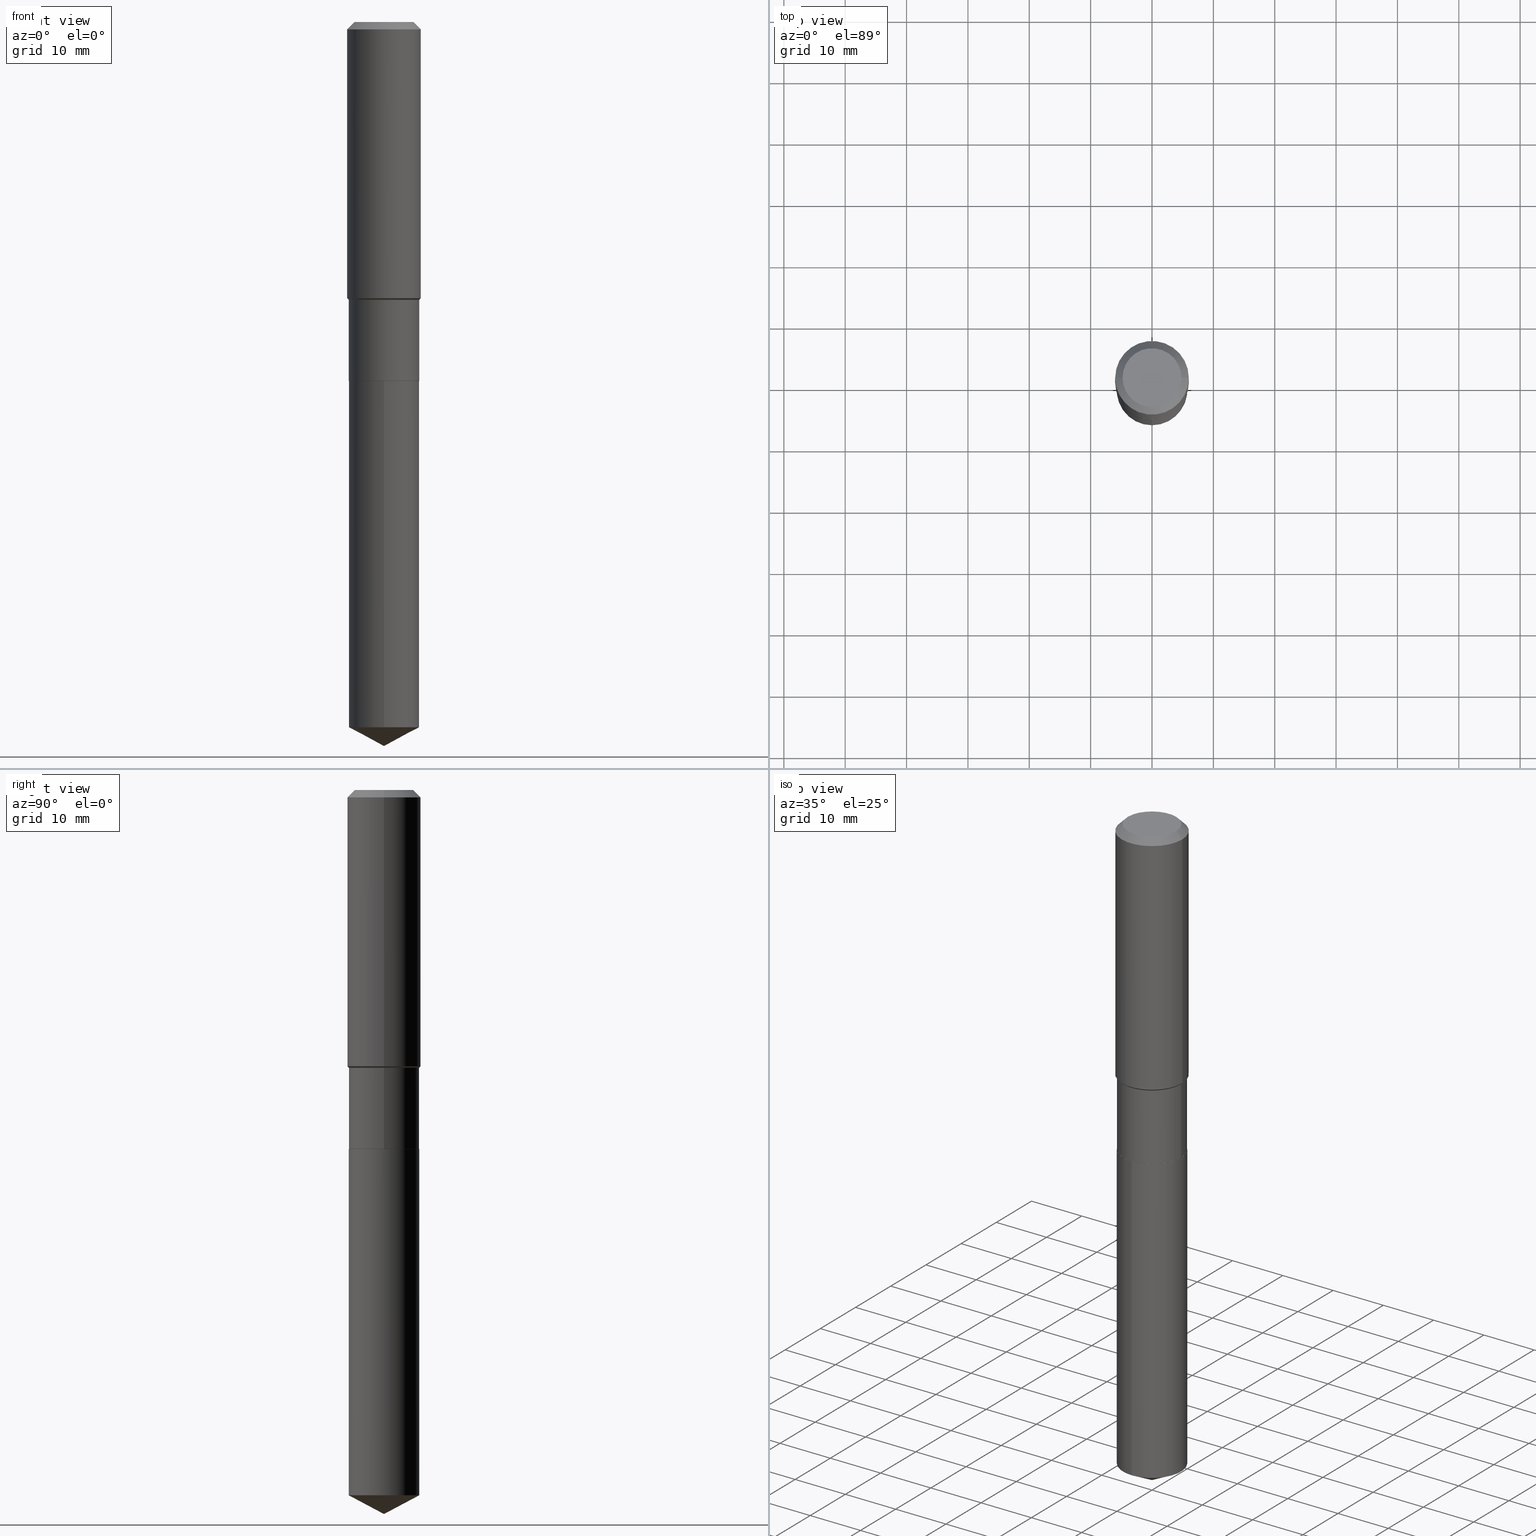
[diagram: canonical four-view strip — front | top / right | iso, engineering-drawing reading convention]
A machine part, canonical four-view strip (front | top / right | iso — engineering-drawing reading convention). The complete STEP part file that produces these views, byte-faithful:
ISO-10303-21;
HEADER;
FILE_DESCRIPTION (( 'STEP AP203' ),
    '1' );
FILE_NAME ('64885.STEP',
    '2024-04-24T19:31:48',
    ( '' ),
    ( '' ),
    'SwSTEP 2.0',
    'SolidWorks 2023',
    '' );
FILE_SCHEMA (( 'CONFIG_CONTROL_DESIGN' ));
ENDSEC;

DATA;
#1 = EDGE_CURVE ( 'NONE', #479, #288, #381, .T. ) ;
#2 = CARTESIAN_POINT ( 'NONE',  ( -0.2362000000000002153, -4.511047027501882961E-15, -1.772699999999999054 ) ) ;
#3 = CARTESIAN_POINT ( 'NONE',  ( 1.155239464041865506E-30, -1.649375784469511859E-16, -0.04724000000000028177 ) ) ;
#4 = AXIS2_PLACEMENT_3D ( 'NONE', #289, #225, #359 ) ;
#5 = LOCAL_TIME ( 15, 31, 48.00000000000000000, #114 ) ;
#6 = DIRECTION ( 'NONE',  ( 1.000000000000000000, -6.982962677686266711E-15, 4.876176775795935793E-29 ) ) ;
#7 = ADVANCED_FACE ( 'NONE', ( #188 ), #386, .T. ) ;
#8 = SHAPE_DEFINITION_REPRESENTATION ( #399, #183 ) ;
#9 = APPROVAL ( #456, 'UNSPECIFIED' ) ;
#10 = PERSON_AND_ORGANIZATION ( #226, #28 ) ;
#11 = LENGTH_MEASURE_WITH_UNIT ( LENGTH_MEASURE( 0.02539999999999999897 ), #302 );
#12 = CIRCLE ( 'NONE', #319, 0.2362000000000002153 ) ;
#13 = ADVANCED_FACE ( 'NONE', ( #89 ), #370, .T. ) ;
#14 = EDGE_CURVE ( 'NONE', #32, #451, #138, .T. ) ;
#15 = VERTEX_POINT ( 'NONE', #278 ) ;
#16 = CARTESIAN_POINT ( 'NONE',  ( 0.2263999999999999624, -9.620776829182280876E-15, -2.302699999999999303 ) ) ;
#17 = VECTOR ( 'NONE', #126, 39.37007874015748143 ) ;
#18 = AXIS2_PLACEMENT_3D ( 'NONE', #458, #154, #343 ) ;
#19 = EDGE_CURVE ( 'NONE', #143, #288, #149, .T. ) ;
#20 = CARTESIAN_POINT ( 'NONE',  ( 0.000000000000000000, 0.000000000000000000, 0.000000000000000000 ) ) ;
#21 = ORIENTED_EDGE ( 'NONE', *, *, #19, .T. ) ;
#22 = DIRECTION ( 'NONE',  ( 0.7071067811865486830, -2.468850131082269682E-15, 0.7071067811865462405 ) ) ;
#23 = ORIENTED_EDGE ( 'NONE', *, *, #26, .F. ) ;
#24 = CARTESIAN_POINT ( 'NONE',  ( 4.359048147025004325E-29, -6.223565486487904770E-15, -1.782499999999999307 ) ) ;
#25 = AXIS2_PLACEMENT_3D ( 'NONE', #405, #218, #117 ) ;
#26 = EDGE_CURVE ( 'NONE', #41, #143, #462, .T. ) ;
#27 = ORIENTED_EDGE ( 'NONE', *, *, #223, .T. ) ;
#28 = ORGANIZATION ( 'UNSPECIFIED', 'UNSPECIFIED', '' ) ;
#29 = CARTESIAN_POINT ( 'NONE',  ( 0.2361999999999999933, -1.814313362916447440E-15, -0.04724000000000028177 ) ) ;
#30 = ORIENTED_EDGE ( 'NONE', *, *, #189, .T. ) ;
#31 = EDGE_CURVE ( 'NONE', #469, #211, #277, .T. ) ;
#32 = VERTEX_POINT ( 'NONE', #81 ) ;
#33 = DIRECTION ( 'NONE',  ( 1.000000000000000000, -6.982962677686266711E-15, 0.000000000000000000 ) ) ;
#34 = ORIENTED_EDGE ( 'NONE', *, *, #131, .T. ) ;
#35 = AXIS2_PLACEMENT_3D ( 'NONE', #107, #250, #137 ) ;
#36 = DIRECTION ( 'NONE',  ( -2.445468806185136597E-29, 3.491481338843145583E-15, 1.000000000000000000 ) ) ;
#37 = CONICAL_SURFACE ( 'NONE', #202, 0.2361999999999999933, 0.7853981633974452814 ) ;
#38 = DIRECTION ( 'NONE',  ( -0.7071067811866199593, 7.493145998870616062E-15, 0.7071067811864750752 ) ) ;
#39 = DIRECTION ( 'NONE',  ( -2.445464056644001836E-29, 3.491488140456377926E-15, 1.000000000000000000 ) ) ;
#40 = DATE_TIME_ROLE ( 'creation_date' ) ;
#41 = VERTEX_POINT ( 'NONE', #464 ) ;
#42 = LINE ( 'NONE', #378, #429 ) ;
#43 = PERSON_AND_ORGANIZATION ( #226, #28 ) ;
#44 = DIRECTION ( 'NONE',  ( -2.445464056644001836E-29, 3.491488140456377531E-15, 1.000000000000000000 ) ) ;
#45 = CALENDAR_DATE ( 2024, 24, 4 ) ;
#46 = CALENDAR_DATE ( 2024, 24, 4 ) ;
#47 =( CONVERSION_BASED_UNIT ( 'INCH', #11 ) LENGTH_UNIT ( ) NAMED_UNIT ( #56 ) );
#48 = EDGE_CURVE ( 'NONE', #451, #32, #239, .T. ) ;
#49 = CIRCLE ( 'NONE', #388, 0.2258999999999999619 ) ;
#50 = DIRECTION ( 'NONE',  ( 1.000000000000000000, -6.982962677686269077E-15, 0.000000000000000000 ) ) ;
#51 = CARTESIAN_POINT ( 'NONE',  ( -0.2362000000000001043, 1.678301941865357380E-15, -1.161852468318209317E-29 ) ) ;
#52 = FACE_OUTER_BOUND ( 'NONE', #426, .T. ) ;
#53 = VECTOR ( 'NONE', #38, 39.37007874015748143 ) ;
#54 = APPROVAL_PERSON_ORGANIZATION ( #10, #9, #238 ) ;
#55 = ORIENTED_EDGE ( 'NONE', *, *, #192, .F. ) ;
#56 = DIMENSIONAL_EXPONENTS ( 1.000000000000000000, 0.000000000000000000, 0.000000000000000000, 0.000000000000000000, 0.000000000000000000, 0.000000000000000000, 0.000000000000000000 ) ;
#57 = CARTESIAN_POINT ( 'NONE',  ( -0.2361999999999999933, -1.498841332041738346E-15, -0.04724000000000028177 ) ) ;
#58 = CARTESIAN_POINT ( 'NONE',  ( 0.000000000000000000, 0.000000000000000000, 0.000000000000000000 ) ) ;
#59 = ORIENTED_EDGE ( 'NONE', *, *, #135, .T. ) ;
#60 = DIRECTION ( 'NONE',  ( -6.982962677686265922E-15, -1.000000000000000000, 3.619939920933211627E-15 ) ) ;
#61 = DIRECTION ( 'NONE',  ( -0.7071067811865453523, 2.468850131082234184E-15, -0.7071067811865496822 ) ) ;
#62 = ORIENTED_EDGE ( 'NONE', *, *, #336, .T. ) ;
#63 = DIRECTION ( 'NONE',  ( -2.445468806185136597E-29, 3.491481338843145583E-15, 1.000000000000000000 ) ) ;
#64 = CARTESIAN_POINT ( 'NONE',  ( -0.2361999999999999933, 1.484438206022545019E-15, -0.04724000000000028177 ) ) ;
#65 = CC_DESIGN_PERSON_AND_ORGANIZATION_ASSIGNMENT ( #391, #387, ( #335 ) ) ;
#66 = AXIS2_PLACEMENT_3D ( 'NONE', #430, #409, #145 ) ;
#67 = ORIENTED_EDGE ( 'NONE', *, *, #251, .F. ) ;
#68 = ADVANCED_FACE ( 'NONE', ( #90 ), #481, .T. ) ;
#69 = DIRECTION ( 'NONE',  ( -0.7071067811865486830, 7.493145998870357316E-15, 0.7071067811865462405 ) ) ;
#70 = EDGE_LOOP ( 'NONE', ( #169, #260, #309, #373 ) ) ;
#71 = APPROVAL ( #348, 'UNSPECIFIED' ) ;
#72 = CLOSED_SHELL ( 'NONE', ( #427, #13, #360, #85, #403 ) ) ;
#73 = DIRECTION ( 'NONE',  ( -2.445468806185136597E-29, 3.491481338843145583E-15, 1.000000000000000000 ) ) ;
#74 = CIRCLE ( 'NONE', #25, 0.2263999999999999624 ) ;
#75 = DIRECTION ( 'NONE',  ( 1.000000000000000000, -6.982962677686266711E-15, 0.000000000000000000 ) ) ;
#76 = DATE_AND_TIME ( #267, #5 ) ;
#77 = CARTESIAN_POINT ( 'NONE',  ( 1.136091443808406747E-28, -1.622037512316700003E-14, -4.645699999999999719 ) ) ;
#78 = PERSON_AND_ORGANIZATION_ROLE ( 'design_supplier' ) ;
#79 = AXIS2_PLACEMENT_3D ( 'NONE', #294, #436, #284 ) ;
#80 = AXIS2_PLACEMENT_3D ( 'NONE', #270, #153, #6 ) ;
#81 = CARTESIAN_POINT ( 'NONE',  ( 1.608668753760976994E-15, 0.2263999999999841972, -4.525320984671841629 ) ) ;
#82 = EDGE_CURVE ( 'NONE', #15, #211, #356, .T. ) ;
#83 = COORDINATED_UNIVERSAL_TIME_OFFSET ( 5, 0, .BEHIND. ) ;
#84 = VERTEX_POINT ( 'NONE', #320 ) ;
#85 = ADVANCED_FACE ( 'NONE', ( #368 ), #372, .T. ) ;
#86 = CARTESIAN_POINT ( 'NONE',  ( 0.2362000000000001043, -1.649375784469496920E-15, 1.151752954443000508E-29 ) ) ;
#87 = ORIENTED_EDGE ( 'NONE', *, *, #484, .T. ) ;
#88 = PRODUCT_DEFINITION_FORMATION_WITH_SPECIFIED_SOURCE ( 'ANY', '', #144, .NOT_KNOWN. ) ;
#89 = FACE_OUTER_BOUND ( 'NONE', #140, .T. ) ;
#90 = FACE_OUTER_BOUND ( 'NONE', #321, .T. ) ;
#91 = CC_DESIGN_DATE_AND_TIME_ASSIGNMENT ( #123, #349, ( #335 ) ) ;
#92 = FACE_OUTER_BOUND ( 'NONE', #437, .T. ) ;
#93 = CARTESIAN_POINT ( 'NONE',  ( 4.359048147025004325E-29, -6.223565486487904770E-15, -1.782499999999999307 ) ) ;
#94 = AXIS2_PLACEMENT_3D ( 'NONE', #127, #390, #258 ) ;
#95 = AXIS2_PLACEMENT_3D ( 'NONE', #190, #36, #33 ) ;
#96 = ORIENTED_EDGE ( 'NONE', *, *, #103, .F. ) ;
#97 = APPLICATION_CONTEXT ( 'configuration controlled 3d designs of mechanical parts and assemblies' ) ;
#98 = CARTESIAN_POINT ( 'NONE',  ( 1.155239464041865506E-30, -1.649375784469511859E-16, -0.04724000000000028177 ) ) ;
#99 = EDGE_CURVE ( 'NONE', #485, #162, #124, .T. ) ;
#100 = DIRECTION ( 'NONE',  ( 1.000000000000000000, -6.982962677686265922E-15, 0.000000000000000000 ) ) ;
#101 = ORIENTED_EDGE ( 'NONE', *, *, #131, .F. ) ;
#102 = DIRECTION ( 'NONE',  ( 1.000000000000000000, -6.982962677686266711E-15, 4.876185090822587894E-29 ) ) ;
#103 = EDGE_CURVE ( 'NONE', #143, #162, #442, .T. ) ;
#104 = FACE_OUTER_BOUND ( 'NONE', #361, .T. ) ;
#105 = ORIENTED_EDGE ( 'NONE', *, *, #48, .F. ) ;
#106 = CARTESIAN_POINT ( 'NONE',  ( 4.335082552724389227E-29, -6.189348969367240933E-15, -1.772699999999999054 ) ) ;
#107 = CARTESIAN_POINT ( 'NONE',  ( 5.631181020002513283E-29, -8.039834078954108869E-15, -2.302699999999999303 ) ) ;
#108 = AXIS2_PLACEMENT_3D ( 'NONE', #411, #73, #274 ) ;
#109 = EDGE_LOOP ( 'NONE', ( #408, #181, #264, #111 ) ) ;
#110 = EDGE_CURVE ( 'NONE', #162, #485, #486, .T. ) ;
#111 = ORIENTED_EDGE ( 'NONE', *, *, #204, .F. ) ;
#112 = FACE_OUTER_BOUND ( 'NONE', #324, .T. ) ;
#113 = DIRECTION ( 'NONE',  ( 1.000000000000000000, -6.982962677686266711E-15, 0.000000000000000000 ) ) ;
#114 = COORDINATED_UNIVERSAL_TIME_OFFSET ( 5, 0, .BEHIND. ) ;
#115 = CARTESIAN_POINT ( 'NONE',  ( 1.155239464041865506E-30, -1.649375784469511859E-16, -0.04724000000000028177 ) ) ;
#116 = VECTOR ( 'NONE', #22, 39.37007874015748854 ) ;
#117 = DIRECTION ( 'NONE',  ( -6.982962677686265922E-15, -1.000000000000000000, 3.619939920933211627E-15 ) ) ;
#118 = AXIS2_PLACEMENT_3D ( 'NONE', #228, #187, #231 ) ;
#119 = EDGE_CURVE ( 'NONE', #288, #485, #132, .T. ) ;
#120 = DIRECTION ( 'NONE',  ( 2.445464056644001555E-29, -3.491488140456377531E-15, -1.000000000000000000 ) ) ;
#121 = CALENDAR_DATE ( 2024, 24, 4 ) ;
#122 = FACE_OUTER_BOUND ( 'NONE', #128, .T. ) ;
#123 = DATE_AND_TIME ( #275, #125 ) ;
#124 = CIRCLE ( 'NONE', #79, 0.2263999999999999069 ) ;
#125 = LOCAL_TIME ( 15, 31, 48.00000000000000000, #200 ) ;
#126 = DIRECTION ( 'NONE',  ( 0.7071067811866199593, -2.468850131083015945E-15, 0.7071067811864750752 ) ) ;
#127 = CARTESIAN_POINT ( 'NONE',  ( 1.106652075193497074E-28, -1.580008888426451514E-14, -4.525320984671841629 ) ) ;
#128 = EDGE_LOOP ( 'NONE', ( #457, #179 ) ) ;
#129 = CONICAL_SURFACE ( 'NONE', #4, 0.2263999999999999069, 0.7853981633974500554 ) ;
#130 = VECTOR ( 'NONE', #69, 39.37007874015748854 ) ;
#131 = EDGE_CURVE ( 'NONE', #288, #143, #268, .T. ) ;
#132 = LINE ( 'NONE', #478, #252 ) ;
#133 = CC_DESIGN_DATE_AND_TIME_ASSIGNMENT ( #76, #40, ( #246 ) ) ;
#134 = PERSON_AND_ORGANIZATION ( #226, #28 ) ;
#135 = EDGE_CURVE ( 'NONE', #369, #331, #254, .T. ) ;
#136 = ORIENTED_EDGE ( 'NONE', *, *, #311, .T. ) ;
#137 = DIRECTION ( 'NONE',  ( 1.000000000000000000, -6.982962677686269077E-15, 0.000000000000000000 ) ) ;
#138 = CIRCLE ( 'NONE', #165, 0.2263999999999999624 ) ;
#139 = CONICAL_SURFACE ( 'NONE', #413, 74.04434902938349694, 1.082104136236486269 ) ;
#140 = EDGE_LOOP ( 'NONE', ( #163, #299, #105 ) ) ;
#141 = LINE ( 'NONE', #296, #230 ) ;
#142 = LINE ( 'NONE', #64, #315 ) ;
#143 = VERTEX_POINT ( 'NONE', #16 ) ;
#144 = PRODUCT ( '64885', '64885', '', ( #207 ) ) ;
#145 = DIRECTION ( 'NONE',  ( 1.000000000000000000, -6.982962677686265922E-15, 4.876176775795935793E-29 ) ) ;
#146 = DIRECTION ( 'NONE',  ( -2.445464056644001836E-29, 3.491488140456377926E-15, 1.000000000000000000 ) ) ;
#147 = EDGE_LOOP ( 'NONE', ( #447, #217, #351, #23 ) ) ;
#148 = EDGE_CURVE ( 'NONE', #333, #331, #142, .T. ) ;
#149 = CIRCLE ( 'NONE', #379, 0.2263999999999999624 ) ;
#150 =( GEOMETRIC_REPRESENTATION_CONTEXT ( 3 ) GLOBAL_UNCERTAINTY_ASSIGNED_CONTEXT ( ( #432 ) ) GLOBAL_UNIT_ASSIGNED_CONTEXT ( ( #47, #350, #205 ) ) REPRESENTATION_CONTEXT ( 'NONE', 'WORKASPACE' ) );
#151 = ORIENTED_EDGE ( 'NONE', *, *, #99, .T. ) ;
#152 = DIRECTION ( 'NONE',  ( 2.438088387897960049E-29, -3.491481338843145188E-15, -1.000000000000000000 ) ) ;
#153 = DIRECTION ( 'NONE',  ( -2.445468806185136597E-29, 3.491481338843145583E-15, 1.000000000000000000 ) ) ;
#154 = DIRECTION ( 'NONE',  ( -2.445468806185136597E-29, 3.491481338843145583E-15, 1.000000000000000000 ) ) ;
#155 = DATE_AND_TIME ( #121, #467 ) ;
#156 = FACE_OUTER_BOUND ( 'NONE', #70, .T. ) ;
#157 = CC_DESIGN_PERSON_AND_ORGANIZATION_ASSIGNMENT ( #272, #459, ( #246 ) ) ;
#158 = DIRECTION ( 'NONE',  ( 6.982962677686265922E-15, 1.000000000000000000, -3.491488140456377531E-15 ) ) ;
#159 = COORDINATED_UNIVERSAL_TIME_OFFSET ( 5, 0, .BEHIND. ) ;
#160 = AXIS2_PLACEMENT_3D ( 'NONE', #487, #152, #383 ) ;
#161 = LOCAL_TIME ( 15, 31, 48.00000000000000000, #159 ) ;
#162 = VERTEX_POINT ( 'NONE', #398 ) ;
#163 = ORIENTED_EDGE ( 'NONE', *, *, #395, .F. ) ;
#164 = ORIENTED_EDGE ( 'NONE', *, *, #484, .F. ) ;
#165 = AXIS2_PLACEMENT_3D ( 'NONE', #425, #203, #460 ) ;
#166 = ORIENTED_EDGE ( 'NONE', *, *, #31, .F. ) ;
#167 = CARTESIAN_POINT ( 'NONE',  ( 5.632403754405604963E-29, -8.041579819623531161E-15, -2.303199999999999470 ) ) ;
#168 = DIRECTION ( 'NONE',  ( -2.445468806185136597E-29, 3.491481338843145583E-15, 1.000000000000000000 ) ) ;
#169 = ORIENTED_EDGE ( 'NONE', *, *, #135, .F. ) ;
#170 = CARTESIAN_POINT ( 'NONE',  ( 4.335082552724389227E-29, -6.189348969367240933E-15, -1.772699999999999054 ) ) ;
#171 = ADVANCED_FACE ( 'NONE', ( #52 ), #402, .T. ) ;
#172 = ORIENTED_EDGE ( 'NONE', *, *, #110, .F. ) ;
#173 = LINE ( 'NONE', #212, #130 ) ;
#174 = DIRECTION ( 'NONE',  ( -2.445468806185136877E-29, 3.491481338843145188E-15, 1.000000000000000000 ) ) ;
#175 = AXIS2_PLACEMENT_3D ( 'NONE', #170, #473, #439 ) ;
#176 = CIRCLE ( 'NONE', #286, 0.2361999999999999933 ) ;
#177 = ORIENTED_EDGE ( 'NONE', *, *, #119, .T. ) ;
#178 = FACE_OUTER_BOUND ( 'NONE', #300, .T. ) ;
#179 = ORIENTED_EDGE ( 'NONE', *, *, #449, .T. ) ;
#180 = CARTESIAN_POINT ( 'NONE',  ( 1.136089236795103745E-28, -1.622040645411819183E-14, -4.645699999999999719 ) ) ;
#181 = ORIENTED_EDGE ( 'NONE', *, *, #14, .T. ) ;
#182 = CYLINDRICAL_SURFACE ( 'NONE', #240, 0.2263999999999999624 ) ;
#183 = ADVANCED_BREP_SHAPE_REPRESENTATION ( '64885', ( #338, #341, #407 ), #150 ) ;
#184 = CC_DESIGN_PERSON_AND_ORGANIZATION_ASSIGNMENT ( #134, #281, ( #144 ) ) ;
#185 = ORIENTED_EDGE ( 'NONE', *, *, #189, .F. ) ;
#186 = APPROVAL_PERSON_ORGANIZATION ( #312, #232, #233 ) ;
#187 = DIRECTION ( 'NONE',  ( -2.445468806185136597E-29, 3.491481338843145583E-15, 1.000000000000000000 ) ) ;
#188 = FACE_OUTER_BOUND ( 'NONE', #406, .T. ) ;
#189 = EDGE_CURVE ( 'NONE', #162, #469, #209, .T. ) ;
#190 = CARTESIAN_POINT ( 'NONE',  ( 5.632403754405604963E-29, -8.041579819623531161E-15, -2.303199999999999470 ) ) ;
#191 = ORIENTED_EDGE ( 'NONE', *, *, #223, .F. ) ;
#192 = EDGE_CURVE ( 'NONE', #469, #369, #393, .T. ) ;
#193 = DIRECTION ( 'NONE',  ( -6.982962677686265133E-15, -1.000000000000000000, 3.541896320645562841E-15 ) ) ;
#194 = DATE_AND_TIME ( #45, #161 ) ;
#195 = CIRCLE ( 'NONE', #219, 0.2263999999999999624 ) ;
#196 = APPROVAL_PERSON_ORGANIZATION ( #303, #71, #389 ) ;
#197 = DIRECTION ( 'NONE',  ( -6.165590087286832874E-15, -0.8829475928589261002, 0.4694715627858920826 ) ) ;
#198 = SECURITY_CLASSIFICATION_LEVEL ( 'unclassified' ) ;
#199 = ADVANCED_FACE ( 'NONE', ( #104 ), #129, .T. ) ;
#200 = COORDINATED_UNIVERSAL_TIME_OFFSET ( 5, 0, .BEHIND. ) ;
#201 = VECTOR ( 'NONE', #431, 39.37007874015748143 ) ;
#202 = AXIS2_PLACEMENT_3D ( 'NONE', #285, #435, #441 ) ;
#203 = DIRECTION ( 'NONE',  ( -2.445464056644001836E-29, 3.491488140456377926E-15, 1.000000000000000000 ) ) ;
#204 = EDGE_CURVE ( 'NONE', #366, #84, #195, .T. ) ;
#205 =( NAMED_UNIT ( * ) SI_UNIT ( $, .STERADIAN. ) SOLID_ANGLE_UNIT ( ) );
#206 = DIRECTION ( 'NONE',  ( 0.7071067811865453523, -7.319954787623248157E-15, -0.7071067811865496822 ) ) ;
#207 = MECHANICAL_CONTEXT ( 'NONE', #362, 'mechanical' ) ;
#208 = CONICAL_SURFACE ( 'NONE', #95, 0.2258999999999999619, 0.7853981633975507526 ) ;
#209 = LINE ( 'NONE', #364, #116 ) ;
#210 = APPLICATION_PROTOCOL_DEFINITION ( 'international standard', 'config_control_design', 1994, #97 ) ;
#211 = VERTEX_POINT ( 'NONE', #29 ) ;
#212 = CARTESIAN_POINT ( 'NONE',  ( -0.2263999999999999069, -4.614896732727038413E-15, -1.782499999999999307 ) ) ;
#213 = EDGE_CURVE ( 'NONE', #451, #84, #141, .T. ) ;
#214 = DIRECTION ( 'NONE',  ( 1.000000000000000000, -6.982962677686265922E-15, 4.876176775795935793E-29 ) ) ;
#215 = ORIENTED_EDGE ( 'NONE', *, *, #1, .F. ) ;
#216 = DIRECTION ( 'NONE',  ( -2.445468806185136597E-29, 3.491481338843145583E-15, 1.000000000000000000 ) ) ;
#217 = ORIENTED_EDGE ( 'NONE', *, *, #1, .T. ) ;
#218 = DIRECTION ( 'NONE',  ( -2.445464056644001836E-29, 3.491488140456377926E-15, 1.000000000000000000 ) ) ;
#219 = AXIS2_PLACEMENT_3D ( 'NONE', #167, #472, #60 ) ;
#220 = CARTESIAN_POINT ( 'NONE',  ( 5.632403754405604963E-29, -8.041579819623531161E-15, -2.303199999999999470 ) ) ;
#221 = AXIS2_PLACEMENT_3D ( 'NONE', #347, #120, #158 ) ;
#222 = CC_DESIGN_APPROVAL ( #232, ( #335 ) ) ;
#223 = EDGE_CURVE ( 'NONE', #485, #369, #173, .T. ) ;
#224 = EDGE_LOOP ( 'NONE', ( #215, #392, #397, #101 ) ) ;
#225 = DIRECTION ( 'NONE',  ( -2.445468806185136597E-29, 3.491481338843145583E-15, 1.000000000000000000 ) ) ;
#226 = PERSON ( 'UNSPECIFIED', 'UNSPECIFIED', 'UNSPECIFIED', ('UNSPECIFIED'), ('UNSPECIFIED'), ('UNSPECIFIED') ) ;
#227 = CC_DESIGN_PERSON_AND_ORGANIZATION_ASSIGNMENT ( #43, #78, ( #88 ) ) ;
#228 = CARTESIAN_POINT ( 'NONE',  ( 5.632403754405604963E-29, -8.041579819623531161E-15, -2.303199999999999470 ) ) ;
#229 = ADVANCED_FACE ( 'NONE', ( #445 ), #476, .T. ) ;
#230 = VECTOR ( 'NONE', #438, 39.37007874015748143 ) ;
#231 = DIRECTION ( 'NONE',  ( 1.000000000000000000, -6.982962677686266711E-15, 0.000000000000000000 ) ) ;
#232 = APPROVAL ( #314, 'UNSPECIFIED' ) ;
#233 = APPROVAL_ROLE ( '' ) ;
#234 = DIRECTION ( 'NONE',  ( -1.000000000000000000, 6.982962677686266711E-15, 0.000000000000000000 ) ) ;
#235 = CARTESIAN_POINT ( 'NONE',  ( -1.580942750228060187E-15, -0.2264000000000157831, -4.525320984671840741 ) ) ;
#236 = PERSON_AND_ORGANIZATION ( #226, #28 ) ;
#237 = CARTESIAN_POINT ( 'NONE',  ( 1.608668753760977191E-15, 0.2263999999999919133, -2.303200000000000358 ) ) ;
#238 = APPROVAL_ROLE ( '' ) ;
#239 = CIRCLE ( 'NONE', #94, 0.2263999999999999624 ) ;
#240 = AXIS2_PLACEMENT_3D ( 'NONE', #382, #39, #420 ) ;
#241 = APPROVAL_DATE_TIME ( #352, #9 ) ;
#242 = CARTESIAN_POINT ( 'NONE',  ( -8.491720915920510952E-28, 1.212397722214510145E-13, 34.72437874015748349 ) ) ;
#243 = VECTOR ( 'NONE', #287, 39.37007874015748143 ) ;
#244 = DIRECTION ( 'NONE',  ( 0.000000000000000000, 0.000000000000000000, 1.000000000000000000 ) ) ;
#245 = AXIS2_PLACEMENT_3D ( 'NONE', #3, #490, #113 ) ;
#246 = PRODUCT_DEFINITION ( 'UNKNOWN', '', #88, #424 ) ;
#247 = ORIENTED_EDGE ( 'NONE', *, *, #213, .F. ) ;
#248 = DIRECTION ( 'NONE',  ( -6.982962677686265133E-15, -1.000000000000000000, 3.541896320645562841E-15 ) ) ;
#249 = ORIENTED_EDGE ( 'NONE', *, *, #82, .F. ) ;
#250 = DIRECTION ( 'NONE',  ( -2.445468806185136597E-29, 3.491481338843145583E-15, 1.000000000000000000 ) ) ;
#251 = EDGE_CURVE ( 'NONE', #333, #15, #298, .T. ) ;
#252 = VECTOR ( 'NONE', #174, 39.37007874015748143 ) ;
#253 = DIRECTION ( 'NONE',  ( -2.445468806185136597E-29, 3.491481338843145583E-15, 1.000000000000000000 ) ) ;
#254 = LINE ( 'NONE', #51, #243 ) ;
#255 = EDGE_LOOP ( 'NONE', ( #404, #329, #400 ) ) ;
#256 = CARTESIAN_POINT ( 'NONE',  ( -9.427742298522546243E-47, 1.346031739168365344E-32, 3.855188123715862256E-18 ) ) ;
#257 = ORIENTED_EDGE ( 'NONE', *, *, #396, .F. ) ;
#258 = DIRECTION ( 'NONE',  ( -6.982962677686265922E-15, -1.000000000000000000, 2.413293280622141084E-15 ) ) ;
#259 = VECTOR ( 'NONE', #265, 39.37007874015748854 ) ;
#260 = ORIENTED_EDGE ( 'NONE', *, *, #316, .T. ) ;
#261 = DIRECTION ( 'NONE',  ( -2.445468806185136597E-29, 3.491481338843145583E-15, 1.000000000000000000 ) ) ;
#262 = ADVANCED_FACE ( 'NONE', ( #178 ), #480, .F. ) ;
#263 = CARTESIAN_POINT ( 'NONE',  ( -0.2258999999999999619, -6.433814552367353714E-15, -2.303199999999999470 ) ) ;
#264 = ORIENTED_EDGE ( 'NONE', *, *, #213, .T. ) ;
#265 = DIRECTION ( 'NONE',  ( 6.273719981627763710E-15, 0.8829475928589293199, 0.4694715627858859208 ) ) ;
#266 = PRODUCT_RELATED_PRODUCT_CATEGORY ( 'detail', '', ( #144 ) ) ;
#267 = CALENDAR_DATE ( 2024, 24, 4 ) ;
#268 = CIRCLE ( 'NONE', #35, 0.2263999999999999624 ) ;
#269 = AXIS2_PLACEMENT_3D ( 'NONE', #283, #477, #371 ) ;
#270 = CARTESIAN_POINT ( 'NONE',  ( 0.000000000000000000, 0.000000000000000000, 0.000000000000000000 ) ) ;
#271 = FACE_OUTER_BOUND ( 'NONE', #147, .T. ) ;
#272 = PERSON_AND_ORGANIZATION ( #226, #28 ) ;
#273 = EDGE_LOOP ( 'NONE', ( #282, #27, #55, #185 ) ) ;
#274 = DIRECTION ( 'NONE',  ( 1.000000000000000000, -6.982962677686266711E-15, 4.876176775795935793E-29 ) ) ;
#275 = CALENDAR_DATE ( 2024, 24, 4 ) ;
#276 = CARTESIAN_POINT ( 'NONE',  ( 0.2258999999999999619, -9.619031088512858584E-15, -2.303199999999999470 ) ) ;
#277 = LINE ( 'NONE', #86, #444 ) ;
#278 = CARTESIAN_POINT ( 'NONE',  ( 0.1889600000000000168, -1.540873453589747738E-15, 3.855188123725863225E-18 ) ) ;
#279 = ORIENTED_EDGE ( 'NONE', *, *, #99, .F. ) ;
#280 = EDGE_LOOP ( 'NONE', ( #375, #59, #164, #166 ) ) ;
#281 = PERSON_AND_ORGANIZATION_ROLE ( 'design_owner' ) ;
#282 = ORIENTED_EDGE ( 'NONE', *, *, #110, .T. ) ;
#283 = CARTESIAN_POINT ( 'NONE',  ( 5.632403754405604963E-29, -8.041579819623531161E-15, -2.303199999999999470 ) ) ;
#284 = DIRECTION ( 'NONE',  ( 1.000000000000000000, -6.982962677686265922E-15, 0.000000000000000000 ) ) ;
#285 = CARTESIAN_POINT ( 'NONE',  ( 1.155239464041865506E-30, -1.649375784469511859E-16, -0.04724000000000028177 ) ) ;
#286 = AXIS2_PLACEMENT_3D ( 'NONE', #98, #216, #363 ) ;
#287 = DIRECTION ( 'NONE',  ( -2.445468806185136877E-29, 3.491481338843145188E-15, 1.000000000000000000 ) ) ;
#288 = VERTEX_POINT ( 'NONE', #293 ) ;
#289 = CARTESIAN_POINT ( 'NONE',  ( 4.359048147025004325E-29, -6.223565486487904770E-15, -1.782499999999999307 ) ) ;
#290 = CARTESIAN_POINT ( 'NONE',  ( 0.2263999999999999346, -1.580942750228170233E-15, 1.103966422040199590E-29 ) ) ;
#291 = DIRECTION ( 'NONE',  ( 1.000000000000000000, 0.000000000000000000, 0.000000000000000000 ) ) ;
#292 = ORIENTED_EDGE ( 'NONE', *, *, #148, .F. ) ;
#293 = CARTESIAN_POINT ( 'NONE',  ( -0.2263999999999999624, -5.523031028960140857E-15, -2.302699999999999303 ) ) ;
#294 = CARTESIAN_POINT ( 'NONE',  ( 4.359048147025004325E-29, -6.223565486487904770E-15, -1.782499999999999307 ) ) ;
#295 = EDGE_LOOP ( 'NONE', ( #357, #443, #355, #247 ) ) ;
#296 = CARTESIAN_POINT ( 'NONE',  ( -1.580942750228114224E-15, -0.2264000000000080115, -2.303199999999998582 ) ) ;
#297 = AXIS2_PLACEMENT_3D ( 'NONE', #20, #168, #323 ) ;
#298 = CIRCLE ( 'NONE', #346, 0.1889600000000000168 ) ;
#299 = ORIENTED_EDGE ( 'NONE', *, *, #342, .T. ) ;
#300 = EDGE_LOOP ( 'NONE', ( #433, #257 ) ) ;
#301 = CARTESIAN_POINT ( 'NONE',  ( 0.2362000000000002153, -7.838724753836739036E-15, -1.772699999999999054 ) ) ;
#302 =( LENGTH_UNIT ( ) NAMED_UNIT ( * ) SI_UNIT ( $, .METRE. ) );
#303 = PERSON_AND_ORGANIZATION ( #226, #28 ) ;
#304 = CARTESIAN_POINT ( 'NONE',  ( -8.491720915920510952E-28, 1.212397722214510145E-13, 34.72437874015748349 ) ) ;
#305 = AXIS2_PLACEMENT_3D ( 'NONE', #242, #318, #248 ) ;
#306 = CC_DESIGN_APPROVAL ( #9, ( #246 ) ) ;
#307 = PLANE ( 'NONE',  #221 ) ;
#308 = ADVANCED_FACE ( 'NONE', ( #92 ), #37, .T. ) ;
#309 = ORIENTED_EDGE ( 'NONE', *, *, #31, .T. ) ;
#310 = FACE_OUTER_BOUND ( 'NONE', #295, .T. ) ;
#311 = EDGE_CURVE ( 'NONE', #331, #211, #176, .T. ) ;
#312 = PERSON_AND_ORGANIZATION ( #226, #28 ) ;
#313 = CARTESIAN_POINT ( 'NONE',  ( 5.631181020002513283E-29, -8.039834078954108869E-15, -2.302699999999999303 ) ) ;
#314 = APPROVAL_STATUS ( 'not_yet_approved' ) ;
#315 = VECTOR ( 'NONE', #61, 39.37007874015748143 ) ;
#316 = EDGE_CURVE ( 'NONE', #369, #469, #12, .T. ) ;
#317 = DIRECTION ( 'NONE',  ( -2.445468806185136877E-29, 3.491481338843145188E-15, 1.000000000000000000 ) ) ;
#318 = DIRECTION ( 'NONE',  ( -2.445464056644001836E-29, 3.491488140456377926E-15, 1.000000000000000000 ) ) ;
#319 = AXIS2_PLACEMENT_3D ( 'NONE', #106, #63, #367 ) ;
#320 = CARTESIAN_POINT ( 'NONE',  ( -1.580942750228114224E-15, -0.2264000000000080115, -2.303199999999998582 ) ) ;
#321 = EDGE_LOOP ( 'NONE', ( #482, #34, #489, #279 ) ) ;
#322 = VERTEX_POINT ( 'NONE', #180 ) ;
#323 = DIRECTION ( 'NONE',  ( 1.000000000000000000, -6.982962677686265922E-15, 4.876176775795935793E-29 ) ) ;
#324 = EDGE_LOOP ( 'NONE', ( #62, #440 ) ) ;
#325 = CARTESIAN_POINT ( 'NONE',  ( -0.1889600000000000168, 1.401969416799070942E-15, 3.855188123706346622E-18 ) ) ;
#326 = VECTOR ( 'NONE', #44, 39.37007874015748143 ) ;
#327 = DIRECTION ( 'NONE',  ( -2.445468806185136597E-29, 3.491481338843145583E-15, 1.000000000000000000 ) ) ;
#328 = CC_DESIGN_SECURITY_CLASSIFICATION ( #335, ( #88 ) ) ;
#329 = ORIENTED_EDGE ( 'NONE', *, *, #395, .T. ) ;
#330 = ADVANCED_FACE ( 'NONE', ( #374 ), #380, .T. ) ;
#331 = VERTEX_POINT ( 'NONE', #57 ) ;
#332 = DIRECTION ( 'NONE',  ( -2.445468806185136597E-29, 3.491481338843145583E-15, 1.000000000000000000 ) ) ;
#333 = VERTEX_POINT ( 'NONE', #325 ) ;
#334 = PLANE ( 'NONE',  #160 ) ;
#335 = SECURITY_CLASSIFICATION ( '', '', #198 ) ;
#336 = EDGE_CURVE ( 'NONE', #84, #366, #74, .T. ) ;
#337 = CARTESIAN_POINT ( 'NONE',  ( -0.2258999999999999619, -6.436463779541464126E-15, -2.303199999999999470 ) ) ;
#338 = MANIFOLD_SOLID_BREP ( 'Body-Move/Copy2[1]', #72 ) ;
#339 = FACE_OUTER_BOUND ( 'NONE', #255, .T. ) ;
#340 = CARTESIAN_POINT ( 'NONE',  ( 1.608668753760922760E-15, 0.2263999999999919410, -2.303200000000000358 ) ) ;
#341 = MANIFOLD_SOLID_BREP ( 'Body-Move/Copy2[2]', #344 ) ;
#342 = EDGE_CURVE ( 'NONE', #322, #32, #448, .T. ) ;
#343 = DIRECTION ( 'NONE',  ( 1.000000000000000000, -6.982962677686266711E-15, 4.876185090822587894E-29 ) ) ;
#344 = CLOSED_SHELL ( 'NONE', ( #377, #7, #365, #330, #171, #68, #199, #353, #308, #453, #262, #229 ) ) ;
#345 = APPROVAL_DATE_TIME ( #194, #232 ) ;
#346 = AXIS2_PLACEMENT_3D ( 'NONE', #256, #261, #102 ) ;
#347 = CARTESIAN_POINT ( 'NONE',  ( 5.632403754405604963E-29, -8.041579819623531161E-15, -2.303199999999999470 ) ) ;
#348 = APPROVAL_STATUS ( 'not_yet_approved' ) ;
#349 = DATE_TIME_ROLE ( 'classification_date' ) ;
#350 =( NAMED_UNIT ( * ) PLANE_ANGLE_UNIT ( ) SI_UNIT ( $, .RADIAN. ) );
#351 = ORIENTED_EDGE ( 'NONE', *, *, #19, .F. ) ;
#352 = DATE_AND_TIME ( #46, #421 ) ;
#353 = ADVANCED_FACE ( 'NONE', ( #156 ), #376, .T. ) ;
#354 = APPLICATION_PROTOCOL_DEFINITION ( 'international standard', 'config_control_design', 1994, #362 ) ;
#355 = ORIENTED_EDGE ( 'NONE', *, *, #336, .F. ) ;
#356 = LINE ( 'NONE', #470, #412 ) ;
#357 = ORIENTED_EDGE ( 'NONE', *, *, #48, .T. ) ;
#358 = AXIS2_PLACEMENT_3D ( 'NONE', #24, #332, #483 ) ;
#359 = DIRECTION ( 'NONE',  ( 1.000000000000000000, -6.982962677686265922E-15, 0.000000000000000000 ) ) ;
#360 = ADVANCED_FACE ( 'NONE', ( #339 ), #139, .T. ) ;
#361 = EDGE_LOOP ( 'NONE', ( #191, #151, #30, #446 ) ) ;
#362 = APPLICATION_CONTEXT ( 'configuration controlled 3d designs of mechanical parts and assemblies' ) ;
#363 = DIRECTION ( 'NONE',  ( 1.000000000000000000, -6.982962677686266711E-15, 0.000000000000000000 ) ) ;
#364 = CARTESIAN_POINT ( 'NONE',  ( 0.2263999999999999069, -7.804508236716074411E-15, -1.782499999999999307 ) ) ;
#365 = ADVANCED_FACE ( 'NONE', ( #455 ), #385, .T. ) ;
#366 = VERTEX_POINT ( 'NONE', #237 ) ;
#367 = DIRECTION ( 'NONE',  ( 1.000000000000000000, -6.982962677686266711E-15, 0.000000000000000000 ) ) ;
#368 = FACE_OUTER_BOUND ( 'NONE', #109, .T. ) ;
#369 = VERTEX_POINT ( 'NONE', #2 ) ;
#370 = CONICAL_SURFACE ( 'NONE', #305, 74.04434902938349694, 1.082104136236486269 ) ;
#371 = DIRECTION ( 'NONE',  ( 1.000000000000000000, -6.982962677686266711E-15, 0.000000000000000000 ) ) ;
#372 = CYLINDRICAL_SURFACE ( 'NONE', #474, 0.2263999999999999624 ) ;
#373 = ORIENTED_EDGE ( 'NONE', *, *, #311, .F. ) ;
#374 = FACE_OUTER_BOUND ( 'NONE', #273, .T. ) ;
#375 = ORIENTED_EDGE ( 'NONE', *, *, #192, .T. ) ;
#376 = CYLINDRICAL_SURFACE ( 'NONE', #108, 0.2362000000000001043 ) ;
#377 = ADVANCED_FACE ( 'NONE', ( #271 ), #208, .T. ) ;
#378 = CARTESIAN_POINT ( 'NONE',  ( 1.136089236795103745E-28, -1.622040645411819183E-14, -4.645699999999999719 ) ) ;
#379 = AXIS2_PLACEMENT_3D ( 'NONE', #313, #463, #50 ) ;
#380 = CONICAL_SURFACE ( 'NONE', #358, 0.2263999999999999069, 0.7853981633974500554 ) ;
#381 = LINE ( 'NONE', #337, #53 ) ;
#382 = CARTESIAN_POINT ( 'NONE',  ( 5.632403754405604963E-29, -8.041579819623531161E-15, -2.303199999999999470 ) ) ;
#383 = DIRECTION ( 'NONE',  ( -1.000000000000000000, 6.982962677686265922E-15, -4.876176775795935793E-29 ) ) ;
#384 = PERSON_AND_ORGANIZATION_ROLE ( 'creator' ) ;
#385 = CYLINDRICAL_SURFACE ( 'NONE', #80, 0.2362000000000001043 ) ;
#386 = CONICAL_SURFACE ( 'NONE', #466, 0.2361999999999999933, 0.7853981633974452814 ) ;
#387 = PERSON_AND_ORGANIZATION_ROLE ( 'classification_officer' ) ;
#388 = AXIS2_PLACEMENT_3D ( 'NONE', #418, #452, #75 ) ;
#389 = APPROVAL_ROLE ( '' ) ;
#390 = DIRECTION ( 'NONE',  ( -2.445464056644001836E-29, 3.491488140456377926E-15, 1.000000000000000000 ) ) ;
#391 = PERSON_AND_ORGANIZATION ( #226, #28 ) ;
#392 = ORIENTED_EDGE ( 'NONE', *, *, #396, .T. ) ;
#393 = CIRCLE ( 'NONE', #175, 0.2362000000000002153 ) ;
#394 = CIRCLE ( 'NONE', #118, 0.2258999999999999619 ) ;
#395 = EDGE_CURVE ( 'NONE', #322, #451, #42, .T. ) ;
#396 = EDGE_CURVE ( 'NONE', #479, #41, #49, .T. ) ;
#397 = ORIENTED_EDGE ( 'NONE', *, *, #26, .T. ) ;
#398 = CARTESIAN_POINT ( 'NONE',  ( 0.2263999999999999069, -7.804508236716074411E-15, -1.782499999999999307 ) ) ;
#399 = PRODUCT_DEFINITION_SHAPE ( 'NONE', 'NONE',  #246 ) ;
#400 = ORIENTED_EDGE ( 'NONE', *, *, #14, .F. ) ;
#401 = CIRCLE ( 'NONE', #18, 0.1889600000000000168 ) ;
#402 = CYLINDRICAL_SURFACE ( 'NONE', #428, 0.2263999999999999346 ) ;
#403 = ADVANCED_FACE ( 'NONE', ( #112 ), #307, .F. ) ;
#404 = ORIENTED_EDGE ( 'NONE', *, *, #342, .F. ) ;
#405 = CARTESIAN_POINT ( 'NONE',  ( 5.632403754405604963E-29, -8.041579819623531161E-15, -2.303199999999999470 ) ) ;
#406 = EDGE_LOOP ( 'NONE', ( #471, #465, #87, #292 ) ) ;
#407 = AXIS2_PLACEMENT_3D ( 'NONE', #423, #244, #291 ) ;
#408 = ORIENTED_EDGE ( 'NONE', *, *, #416, .F. ) ;
#409 = DIRECTION ( 'NONE',  ( -2.438088387897960049E-29, 3.491481338843145188E-15, 1.000000000000000000 ) ) ;
#410 = CARTESIAN_POINT ( 'NONE',  ( -0.2263999999999999069, -5.523031028960140857E-15, -1.782499999999999307 ) ) ;
#411 = CARTESIAN_POINT ( 'NONE',  ( 0.000000000000000000, 0.000000000000000000, 0.000000000000000000 ) ) ;
#412 = VECTOR ( 'NONE', #206, 39.37007874015748143 ) ;
#413 = AXIS2_PLACEMENT_3D ( 'NONE', #304, #415, #193 ) ;
#414 = DIRECTION ( 'NONE',  ( 2.445468806185136597E-29, -3.491481338843145583E-15, -1.000000000000000000 ) ) ;
#415 = DIRECTION ( 'NONE',  ( -2.445464056644001836E-29, 3.491488140456377926E-15, 1.000000000000000000 ) ) ;
#416 = EDGE_CURVE ( 'NONE', #32, #366, #450, .T. ) ;
#417 = COORDINATED_UNIVERSAL_TIME_OFFSET ( 5, 0, .BEHIND. ) ;
#418 = CARTESIAN_POINT ( 'NONE',  ( 5.632403754405604963E-29, -8.041579819623531161E-15, -2.303199999999999470 ) ) ;
#419 = APPROVAL_DATE_TIME ( #155, #71 ) ;
#420 = DIRECTION ( 'NONE',  ( -6.982962677686265922E-15, -1.000000000000000000, 3.619939920933211627E-15 ) ) ;
#421 = LOCAL_TIME ( 15, 31, 48.00000000000000000, #83 ) ;
#422 = EDGE_CURVE ( 'NONE', #41, #479, #394, .T. ) ;
#423 = CARTESIAN_POINT ( 'NONE',  ( 0.000000000000000000, 0.000000000000000000, 0.000000000000000000 ) ) ;
#424 = DESIGN_CONTEXT ( 'detailed design', #97, 'design' ) ;
#425 = CARTESIAN_POINT ( 'NONE',  ( 1.106652075193497074E-28, -1.580008888426451514E-14, -4.525320984671841629 ) ) ;
#426 = EDGE_LOOP ( 'NONE', ( #21, #177, #172, #96 ) ) ;
#427 = ADVANCED_FACE ( 'NONE', ( #310 ), #182, .T. ) ;
#428 = AXIS2_PLACEMENT_3D ( 'NONE', #58, #327, #214 ) ;
#429 = VECTOR ( 'NONE', #197, 39.37007874015748854 ) ;
#430 = CARTESIAN_POINT ( 'NONE',  ( 5.632403754405604963E-29, -8.041579819623531161E-15, -2.303199999999999470 ) ) ;
#431 = DIRECTION ( 'NONE',  ( -2.445468806185136877E-29, 3.491481338843145188E-15, 1.000000000000000000 ) ) ;
#432 = UNCERTAINTY_MEASURE_WITH_UNIT (LENGTH_MEASURE( 1.000000000000000082E-05 ), #47, 'distance_accuracy_value', 'NONE');
#433 = ORIENTED_EDGE ( 'NONE', *, *, #422, .F. ) ;
#434 = CC_DESIGN_PERSON_AND_ORGANIZATION_ASSIGNMENT ( #236, #384, ( #88 ) ) ;
#435 = DIRECTION ( 'NONE',  ( 2.445468806185136597E-29, -3.491481338843145583E-15, -1.000000000000000000 ) ) ;
#436 = DIRECTION ( 'NONE',  ( -2.445468806185136597E-29, 3.491481338843145583E-15, 1.000000000000000000 ) ) ;
#437 = EDGE_LOOP ( 'NONE', ( #249, #67, #475, #136 ) ) ;
#438 = DIRECTION ( 'NONE',  ( -2.445464056644001836E-29, 3.491488140456377531E-15, 1.000000000000000000 ) ) ;
#439 = DIRECTION ( 'NONE',  ( 1.000000000000000000, -6.982962677686266711E-15, 0.000000000000000000 ) ) ;
#440 = ORIENTED_EDGE ( 'NONE', *, *, #204, .T. ) ;
#441 = DIRECTION ( 'NONE',  ( -1.000000000000000000, 6.982962677686266711E-15, 0.000000000000000000 ) ) ;
#442 = LINE ( 'NONE', #290, #201 ) ;
#443 = ORIENTED_EDGE ( 'NONE', *, *, #416, .T. ) ;
#444 = VECTOR ( 'NONE', #317, 39.37007874015748143 ) ;
#445 = FACE_OUTER_BOUND ( 'NONE', #224, .T. ) ;
#446 = ORIENTED_EDGE ( 'NONE', *, *, #316, .F. ) ;
#447 = ORIENTED_EDGE ( 'NONE', *, *, #422, .T. ) ;
#448 = LINE ( 'NONE', #77, #259 ) ;
#449 = EDGE_CURVE ( 'NONE', #15, #333, #401, .T. ) ;
#450 = LINE ( 'NONE', #340, #326 ) ;
#451 = VERTEX_POINT ( 'NONE', #235 ) ;
#452 = DIRECTION ( 'NONE',  ( -2.445468806185136597E-29, 3.491481338843145583E-15, 1.000000000000000000 ) ) ;
#453 = ADVANCED_FACE ( 'NONE', ( #122 ), #334, .F. ) ;
#454 = CIRCLE ( 'NONE', #245, 0.2361999999999999933 ) ;
#455 = FACE_OUTER_BOUND ( 'NONE', #280, .T. ) ;
#456 = APPROVAL_STATUS ( 'not_yet_approved' ) ;
#457 = ORIENTED_EDGE ( 'NONE', *, *, #251, .T. ) ;
#458 = CARTESIAN_POINT ( 'NONE',  ( -9.427742298522546243E-47, 1.346031739168365344E-32, 3.855188123715862256E-18 ) ) ;
#459 = PERSON_AND_ORGANIZATION_ROLE ( 'creator' ) ;
#460 = DIRECTION ( 'NONE',  ( -6.982962677686265922E-15, -1.000000000000000000, 2.413293280622141084E-15 ) ) ;
#461 = AXIS2_PLACEMENT_3D ( 'NONE', #93, #253, #100 ) ;
#462 = LINE ( 'NONE', #276, #17 ) ;
#463 = DIRECTION ( 'NONE',  ( -2.445468806185136597E-29, 3.491481338843145583E-15, 1.000000000000000000 ) ) ;
#464 = CARTESIAN_POINT ( 'NONE',  ( 0.2258999999999999619, -9.619031088512858584E-15, -2.303199999999999470 ) ) ;
#465 = ORIENTED_EDGE ( 'NONE', *, *, #82, .T. ) ;
#466 = AXIS2_PLACEMENT_3D ( 'NONE', #115, #414, #234 ) ;
#467 = LOCAL_TIME ( 15, 31, 48.00000000000000000, #417 ) ;
#468 = DIRECTION ( 'NONE',  ( -6.982962677686265922E-15, -1.000000000000000000, 3.619939920933211627E-15 ) ) ;
#469 = VERTEX_POINT ( 'NONE', #301 ) ;
#470 = CARTESIAN_POINT ( 'NONE',  ( 0.2361999999999999933, -1.785387205520586782E-15, -0.04724000000000028177 ) ) ;
#471 = ORIENTED_EDGE ( 'NONE', *, *, #449, .F. ) ;
#472 = DIRECTION ( 'NONE',  ( -2.445464056644001836E-29, 3.491488140456377926E-15, 1.000000000000000000 ) ) ;
#473 = DIRECTION ( 'NONE',  ( -2.445468806185136597E-29, 3.491481338843145583E-15, 1.000000000000000000 ) ) ;
#474 = AXIS2_PLACEMENT_3D ( 'NONE', #220, #146, #468 ) ;
#475 = ORIENTED_EDGE ( 'NONE', *, *, #148, .T. ) ;
#476 = CONICAL_SURFACE ( 'NONE', #269, 0.2258999999999999619, 0.7853981633975507526 ) ;
#477 = DIRECTION ( 'NONE',  ( -2.445468806185136597E-29, 3.491481338843145583E-15, 1.000000000000000000 ) ) ;
#478 = CARTESIAN_POINT ( 'NONE',  ( -0.2263999999999999346, 1.608668753760866356E-15, -1.113646904433710280E-29 ) ) ;
#479 = VERTEX_POINT ( 'NONE', #263 ) ;
#480 = PLANE ( 'NONE',  #66 ) ;
#481 = CYLINDRICAL_SURFACE ( 'NONE', #297, 0.2263999999999999346 ) ;
#482 = ORIENTED_EDGE ( 'NONE', *, *, #119, .F. ) ;
#483 = DIRECTION ( 'NONE',  ( 1.000000000000000000, -6.982962677686265922E-15, 0.000000000000000000 ) ) ;
#484 = EDGE_CURVE ( 'NONE', #211, #331, #454, .T. ) ;
#485 = VERTEX_POINT ( 'NONE', #410 ) ;
#486 = CIRCLE ( 'NONE', #461, 0.2263999999999999069 ) ;
#487 = CARTESIAN_POINT ( 'NONE',  ( -4.713871149261273121E-47, 6.730158695841826722E-33, 1.927594061857931128E-18 ) ) ;
#488 = CC_DESIGN_APPROVAL ( #71, ( #88 ) ) ;
#489 = ORIENTED_EDGE ( 'NONE', *, *, #103, .T. ) ;
#490 = DIRECTION ( 'NONE',  ( -2.445468806185136597E-29, 3.491481338843145583E-15, 1.000000000000000000 ) ) ;
ENDSEC;
END-ISO-10303-21;
